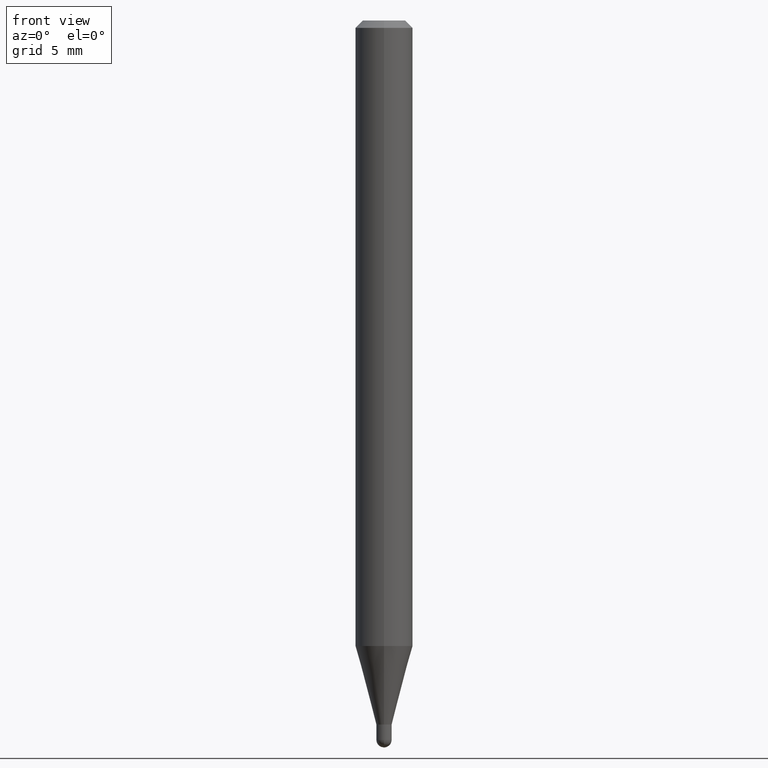
[diagram: clean part render]
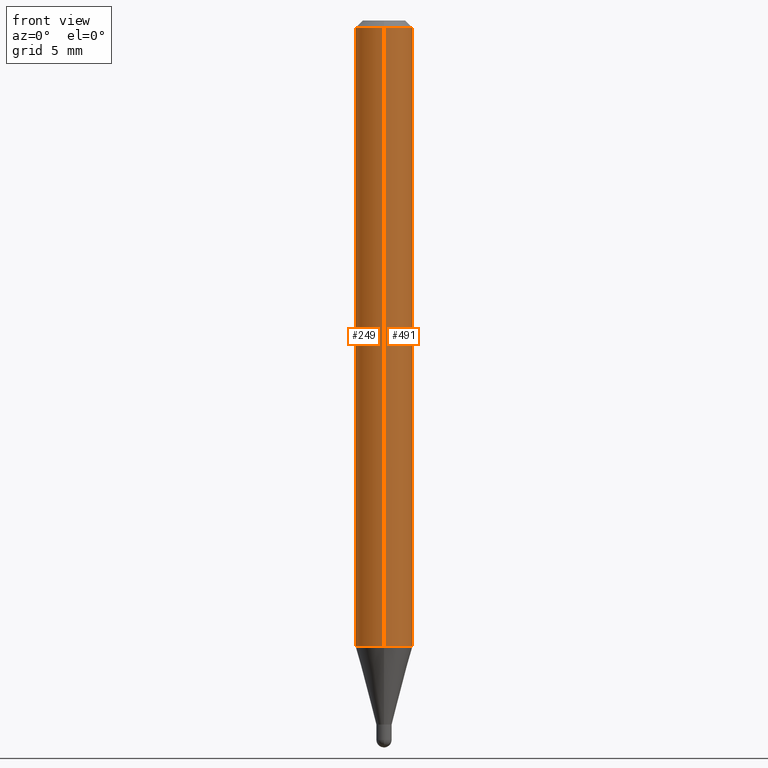
[diagram: same view with one multi-face feature highlighted, each face labeled with its STEP entity id]
A machine part, front view. The highlighted faces form ONE feature: a constant-radius fillet chain: 2 tangent blend faces with common blend radius 1.4999 mm. The faces share edges in the B-rep.
Their STEP definitions:
[1] entity #249 (Cylinder):
#7 = DIRECTION ( 'NONE',  ( -6.982962677686265922E-15, -1.000000000000000000, 3.505890868245046092E-15 ) ) ;
#8 = EDGE_CURVE ( 'NONE', #148, #409, #408, .T. ) ;
#10 = ORIENTED_EDGE ( 'NONE', *, *, #497, .F. ) ;
#44 = AXIS2_PLACEMENT_3D ( 'NONE', #428, #506, #195 ) ;
#48 = ORIENTED_EDGE ( 'NONE', *, *, #8, .F. ) ;
#57 = CIRCLE ( 'NONE', #319, 0.05904999999999999832 ) ;
#67 = DIRECTION ( 'NONE',  ( -2.445444728343672340E-29, 3.491515819682548515E-15, 1.000000000000000000 ) ) ;
#92 = CARTESIAN_POINT ( 'NONE',  ( 3.668167092515527743E-31, -5.237273729523851294E-17, -0.01500000000000008098 ) ) ;
#107 = ORIENTED_EDGE ( 'NONE', *, *, #203, .T. ) ;
#109 = CIRCLE ( 'NONE', #44, 0.05904999999999999832 ) ;
#139 = CARTESIAN_POINT ( 'NONE',  ( 4.195754854663390985E-16, 0.05904999999999999832, -2.061740091522544969E-16 ) ) ;
#148 = VERTEX_POINT ( 'NONE', #156 ) ;
#156 = CARTESIAN_POINT ( 'NONE',  ( 4.195754854663704558E-16, 0.05904999999999550192, -1.287302200032271582 ) ) ;
#158 = CARTESIAN_POINT ( 'NONE',  ( 4.195754854663708009E-16, 0.05904999999999994975, -0.01500000000000028741 ) ) ;
#172 = CARTESIAN_POINT ( 'NONE',  ( -4.123439461173739834E-16, -0.05904999999999999832, 2.061740091522544969E-16 ) ) ;
#176 = DIRECTION ( 'NONE',  ( -2.445444728343672340E-29, 3.491515819682548515E-15, 1.000000000000000000 ) ) ;
#195 = DIRECTION ( 'NONE',  ( -6.982962677686265922E-15, -1.000000000000000000, 4.626330217890369336E-15 ) ) ;
#203 = EDGE_CURVE ( 'NONE', #148, #225, #109, .T. ) ;
#205 = LINE ( 'NONE', #172, #419 ) ;
#208 = VERTEX_POINT ( 'NONE', #347 ) ;
#221 = EDGE_CURVE ( 'NONE', #225, #208, #205, .T. ) ;
#225 = VERTEX_POINT ( 'NONE', #285 ) ;
#236 = EDGE_LOOP ( 'NONE', ( #48, #107, #328, #10 ) ) ;
#242 = DIRECTION ( 'NONE',  ( -2.445444728343672060E-29, 3.491515819682548515E-15, 1.000000000000000000 ) ) ;
#249 = ADVANCED_FACE ( 'NONE', ( #440 ), #289, .T. ) ;
#285 = CARTESIAN_POINT ( 'NONE',  ( -4.123439461173426755E-16, -0.05905000000000450860, -1.287302200032271138 ) ) ;
#289 = CYLINDRICAL_SURFACE ( 'NONE', #510, 0.05904999999999999832 ) ;
#319 = AXIS2_PLACEMENT_3D ( 'NONE', #92, #242, #7 ) ;
#328 = ORIENTED_EDGE ( 'NONE', *, *, #221, .T. ) ;
#347 = CARTESIAN_POINT ( 'NONE',  ( -4.123439461173736383E-16, -0.05905000000000005383, -0.01499999999999987454 ) ) ;
#401 = DIRECTION ( 'NONE',  ( -2.445444728343672060E-29, 3.491515819682548515E-15, 1.000000000000000000 ) ) ;
#406 = VECTOR ( 'NONE', #67, 39.37007874015748143 ) ;
#408 = LINE ( 'NONE', #139, #406 ) ;
#409 = VERTEX_POINT ( 'NONE', #158 ) ;
#419 = VECTOR ( 'NONE', #176, 39.37007874015748143 ) ;
#428 = CARTESIAN_POINT ( 'NONE',  ( 3.148026378854129597E-29, -4.494635996124823289E-15, -1.287302200032271360 ) ) ;
#440 = FACE_OUTER_BOUND ( 'NONE', #236, .T. ) ;
#445 = CARTESIAN_POINT ( 'NONE',  ( 0.000000000000000000, 0.000000000000000000, 0.000000000000000000 ) ) ;
#450 = DIRECTION ( 'NONE',  ( -6.982962677686265922E-15, -1.000000000000000000, 3.491515819682548909E-15 ) ) ;
#497 = EDGE_CURVE ( 'NONE', #409, #208, #57, .T. ) ;
#506 = DIRECTION ( 'NONE',  ( -2.445444728343672060E-29, 3.491515819682548515E-15, 1.000000000000000000 ) ) ;
#510 = AXIS2_PLACEMENT_3D ( 'NONE', #445, #401, #450 ) ;
[2] entity #491 (Cylinder):
#8 = EDGE_CURVE ( 'NONE', #148, #409, #408, .T. ) ;
#9 = CIRCLE ( 'NONE', #324, 0.05904999999999999832 ) ;
#11 = DIRECTION ( 'NONE',  ( -6.982962677686265922E-15, -1.000000000000000000, 3.491515819682548909E-15 ) ) ;
#16 = ORIENTED_EDGE ( 'NONE', *, *, #221, .F. ) ;
#54 = CYLINDRICAL_SURFACE ( 'NONE', #511, 0.05904999999999999832 ) ;
#67 = DIRECTION ( 'NONE',  ( -2.445444728343672340E-29, 3.491515819682548515E-15, 1.000000000000000000 ) ) ;
#89 = DIRECTION ( 'NONE',  ( -6.982962677686265922E-15, -1.000000000000000000, 3.505890868245046092E-15 ) ) ;
#94 = EDGE_LOOP ( 'NONE', ( #136, #183, #441, #16 ) ) ;
#131 = DIRECTION ( 'NONE',  ( -6.982962677686265922E-15, -1.000000000000000000, 4.626330217890369336E-15 ) ) ;
#136 = ORIENTED_EDGE ( 'NONE', *, *, #436, .T. ) ;
#139 = CARTESIAN_POINT ( 'NONE',  ( 4.195754854663390985E-16, 0.05904999999999999832, -2.061740091522544969E-16 ) ) ;
#148 = VERTEX_POINT ( 'NONE', #156 ) ;
#156 = CARTESIAN_POINT ( 'NONE',  ( 4.195754854663704558E-16, 0.05904999999999550192, -1.287302200032271582 ) ) ;
#158 = CARTESIAN_POINT ( 'NONE',  ( 4.195754854663708009E-16, 0.05904999999999994975, -0.01500000000000028741 ) ) ;
#163 = CARTESIAN_POINT ( 'NONE',  ( 0.000000000000000000, 0.000000000000000000, 0.000000000000000000 ) ) ;
#172 = CARTESIAN_POINT ( 'NONE',  ( -4.123439461173739834E-16, -0.05904999999999999832, 2.061740091522544969E-16 ) ) ;
#174 = DIRECTION ( 'NONE',  ( -2.445444728343672060E-29, 3.491515819682548515E-15, 1.000000000000000000 ) ) ;
#176 = DIRECTION ( 'NONE',  ( -2.445444728343672340E-29, 3.491515819682548515E-15, 1.000000000000000000 ) ) ;
#183 = ORIENTED_EDGE ( 'NONE', *, *, #8, .T. ) ;
#205 = LINE ( 'NONE', #172, #419 ) ;
#208 = VERTEX_POINT ( 'NONE', #347 ) ;
#212 = EDGE_CURVE ( 'NONE', #208, #409, #500, .T. ) ;
#221 = EDGE_CURVE ( 'NONE', #225, #208, #205, .T. ) ;
#225 = VERTEX_POINT ( 'NONE', #285 ) ;
#232 = DIRECTION ( 'NONE',  ( -2.445444728343672060E-29, 3.491515819682548515E-15, 1.000000000000000000 ) ) ;
#285 = CARTESIAN_POINT ( 'NONE',  ( -4.123439461173426755E-16, -0.05905000000000450860, -1.287302200032271138 ) ) ;
#324 = AXIS2_PLACEMENT_3D ( 'NONE', #357, #472, #131 ) ;
#342 = AXIS2_PLACEMENT_3D ( 'NONE', #470, #232, #89 ) ;
#347 = CARTESIAN_POINT ( 'NONE',  ( -4.123439461173736383E-16, -0.05905000000000005383, -0.01499999999999987454 ) ) ;
#357 = CARTESIAN_POINT ( 'NONE',  ( 3.148026378854129597E-29, -4.494635996124823289E-15, -1.287302200032271360 ) ) ;
#406 = VECTOR ( 'NONE', #67, 39.37007874015748143 ) ;
#408 = LINE ( 'NONE', #139, #406 ) ;
#409 = VERTEX_POINT ( 'NONE', #158 ) ;
#419 = VECTOR ( 'NONE', #176, 39.37007874015748143 ) ;
#432 = FACE_OUTER_BOUND ( 'NONE', #94, .T. ) ;
#436 = EDGE_CURVE ( 'NONE', #225, #148, #9, .T. ) ;
#441 = ORIENTED_EDGE ( 'NONE', *, *, #212, .F. ) ;
#470 = CARTESIAN_POINT ( 'NONE',  ( 3.668167092515527743E-31, -5.237273729523851294E-17, -0.01500000000000008098 ) ) ;
#472 = DIRECTION ( 'NONE',  ( -2.445444728343672060E-29, 3.491515819682548515E-15, 1.000000000000000000 ) ) ;
#491 = ADVANCED_FACE ( 'NONE', ( #432 ), #54, .T. ) ;
#500 = CIRCLE ( 'NONE', #342, 0.05904999999999999832 ) ;
#511 = AXIS2_PLACEMENT_3D ( 'NONE', #163, #174, #11 ) ;